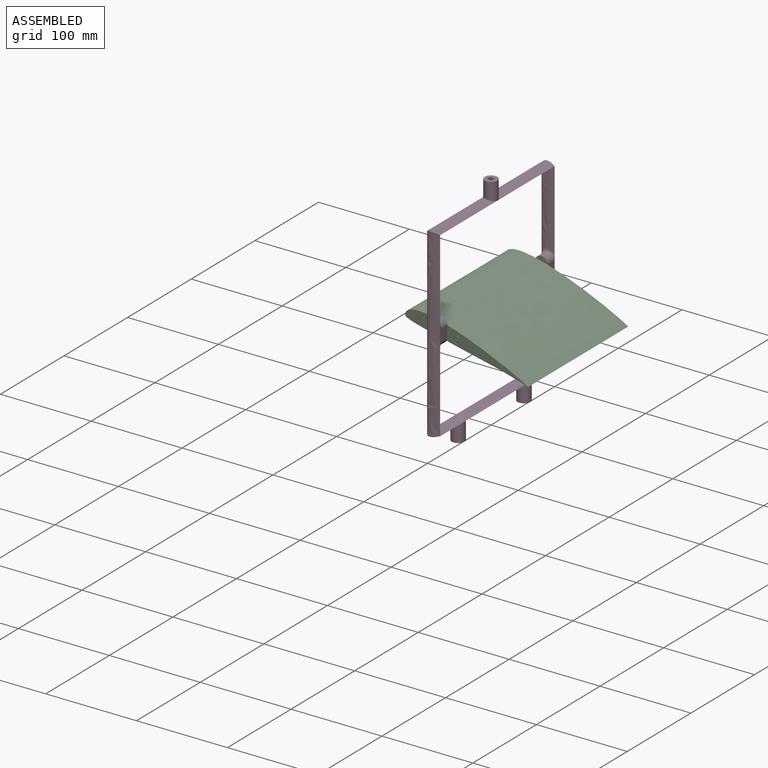
[diagram: assembled view]
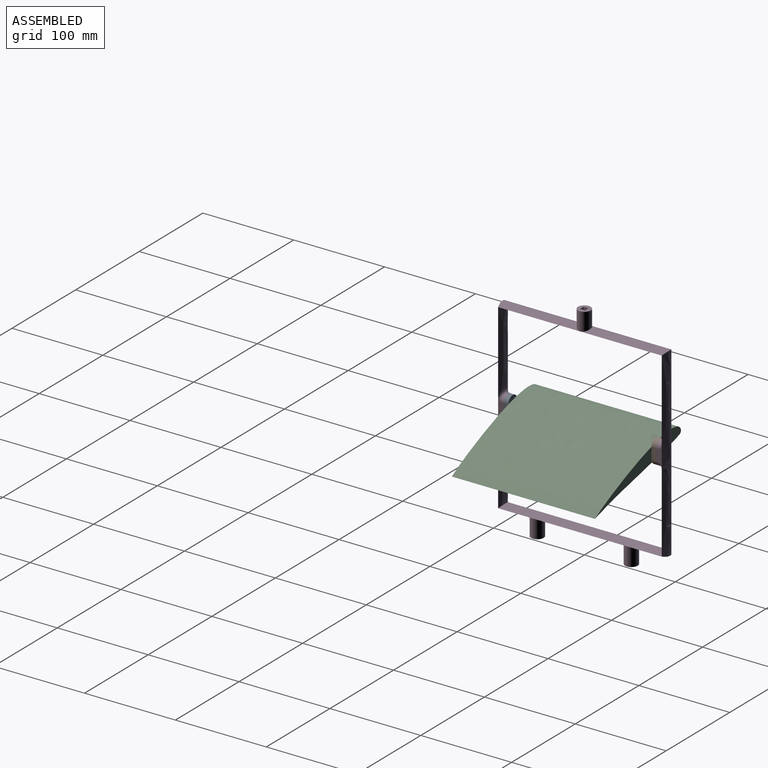
[diagram: assembled view, second angle]
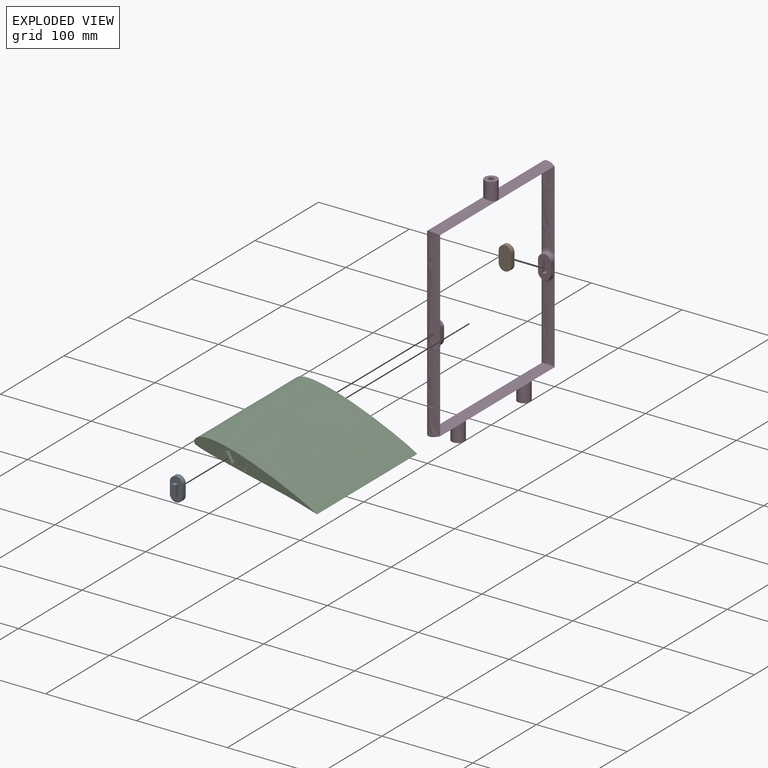
[diagram: exploded view]
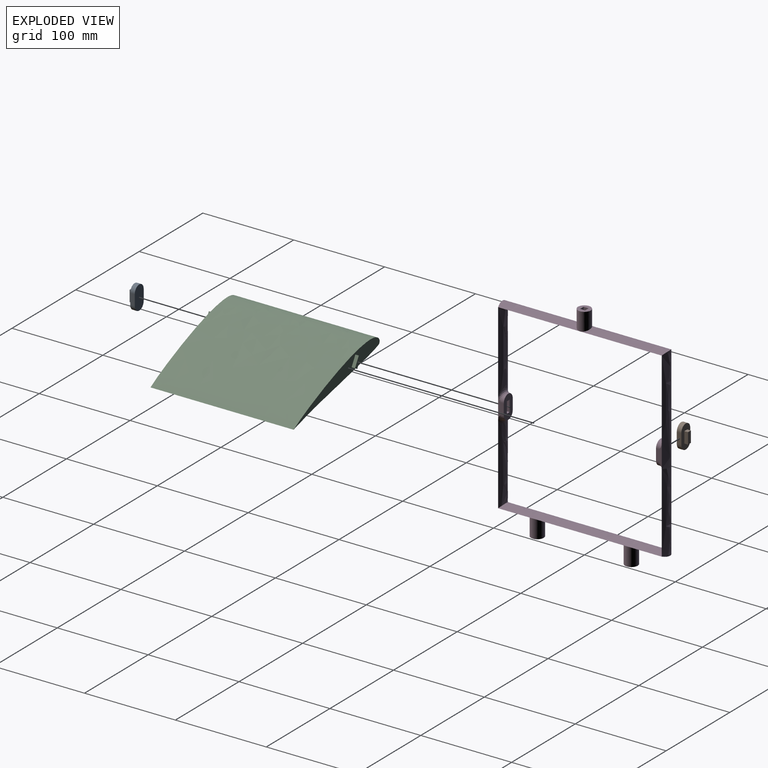
[diagram: exploded view, second angle]
ASSEMBLY  parts=4 mates=3
PART A: 11 faces, bbox 14x9x26 mm
  f0: plane 12.4x4mm, normal (-1,0,0), area 49.6mm2, adj f1,f3,f4,f10
  f1: plane 4.4x4mm, normal (0,0,-1), area 17.6mm2, adj f0,f2,f4,f10
  f2: plane 12.4x4mm, normal (1,0,0), area 49.6mm2, adj f1,f3,f4,f10
  f3: plane 4.4x4mm, normal (0,0,1), area 17.6mm2, adj f0,f2,f4,f10
  f4: plane 12.4x4.4mm, normal (0,-1,0), area 54.6mm2, adj f0,f1,f2,f3
  f5: plane 12x5mm, normal (-1,0,0), area 60mm2, adj f6,f8,f9,f10
  f6: cylinder r=7mm len=14mm, axis (0,-1,0), area 110mm2, adj f5,f7,f9,f10
  f7: plane 12x5mm, normal (1,0,0), area 60mm2, adj f6,f8,f9,f10
  f8: cylinder r=7mm len=14mm, axis (0,-1,0), area 110mm2, adj f5,f7,f9,f10
  f9: plane 26x14mm, normal (0,1,0), area 321.9mm2, adj f5,f6,f7,f8
  f10: plane 26x14mm, normal (0,-1,0), area 267.4mm2, adj f0,f1,f2,f3,f5,f6,f7,f8
PART B: 11 faces, bbox 14x9x26 mm
  f0: plane 12.4x4mm, normal (-1,0,0), area 49.6mm2, adj f1,f3,f4,f10
  f1: plane 4.4x4mm, normal (0,0,-1), area 17.6mm2, adj f0,f2,f4,f10
  f2: plane 12.4x4mm, normal (1,0,0), area 49.6mm2, adj f1,f3,f4,f10
  f3: plane 4.4x4mm, normal (0,0,1), area 17.6mm2, adj f0,f2,f4,f10
  f4: plane 12.4x4.4mm, normal (0,1,0), area 54.6mm2, adj f0,f1,f2,f3
  f5: plane 12x5mm, normal (-1,0,0), area 60mm2, adj f6,f8,f9,f10
  f6: cylinder r=7mm len=14mm, axis (0,1,0), area 110mm2, adj f5,f7,f9,f10
  f7: plane 12x5mm, normal (1,0,0), area 60mm2, adj f6,f8,f9,f10
  f8: cylinder r=7mm len=14mm, axis (0,1,0), area 110mm2, adj f5,f7,f9,f10
  f9: plane 26x14mm, normal (0,-1,0), area 321.9mm2, adj f5,f6,f7,f8
  f10: plane 26x14mm, normal (0,1,0), area 267.4mm2, adj f0,f1,f2,f3,f5,f6,f7,f8
PART C: 24 faces, bbox 140.2x165x28 mm
  f0: cylinder r=4.2mm len=157.5mm, axis (0,1,0), area 750.4mm2, adj f1,f2,f3,f4
  f1: extruded ~157.5x139.02mm, area 21935.3mm2, adj f0,f2,f3,f4
  f2: extruded ~157.5x140mm, area 22736.4mm2, adj f0,f1,f3,f4
  f3: plane 140.25x28.05mm, normal (0,-1,0), area 1383.7mm2, adj f0,f1,f2,f10,f11,f12,f13,f16
  f4: plane 140.25x28.05mm, normal (0,1,0), area 1446.5mm2, adj f0,f1,f2,f5,f6,f7,f8
  f5: plane 3.75x2.83mm, normal (0.71,0,-0.71), area 15mm2, adj f4,f6,f8,f9
  f6: plane 8.49x8.49mm, normal (0.71,0,0.71), area 45mm2, adj f4,f5,f7,f9
  f7: plane 3.75x2.83mm, normal (-0.71,0,0.71), area 15mm2, adj f4,f6,f8,f9
  f8: plane 8.49x8.49mm, normal (-0.71,0,-0.71), area 45mm2, adj f4,f5,f7,f9
  f9: plane 11.31x11.31mm, normal (0,1,0), area 48mm2, adj f5,f6,f7,f8
  f10: plane 3.75x2.83mm, normal (0.71,0,-0.71), area 15mm2, adj f3,f11,f13,f14
  f11: plane 8.49x8.49mm, normal (-0.71,0,-0.71), area 45mm2, adj f3,f10,f12,f14
  f12: plane 3.75x2.83mm, normal (-0.71,0,0.71), area 15mm2, adj f3,f11,f13,f14
  f13: plane 8.49x8.49mm, normal (0.71,0,0.71), area 45mm2, adj f3,f10,f12,f14
  f14: plane 11.31x11.31mm, normal (0,-1,0), area 48mm2, adj f10,f11,f12,f13
  f15: cylinder r=1.26mm len=2.52mm, axis (0,-1,0), area 4mm2, adj f17,f23
  f16: extruded ~10.04x6.62mm, area 17.5mm2, adj f3,f17
  f17: plane 10.45x7.01mm, normal (0,-1,0), area 38.4mm2, adj f15,f16
  f18: plane 2.28x0.5mm, normal (-0.03,0,-1), area 1.1mm2, adj f3,f19,f21,f22
  f19: plane 8.35x0.5mm, normal (1,0,0), area 4.2mm2, adj f3,f18,f20,f22
  f20: plane 2.28x0.5mm, normal (0,0,1), area 1.1mm2, adj f3,f19,f21,f22
  f21: plane 8.27x0.5mm, normal (-1,0,0), area 4.1mm2, adj f3,f18,f20,f22
  f22: plane 8.35x2.28mm, normal (0,-1,0), area 19mm2, adj f18,f19,f20,f21
  f23: plane 2.52x2.52mm, normal (0,-1,0), area 5mm2, adj f15
PART D: 73 faces, bbox 17.2x189.9x240.7 mm
  f0: cylinder r=7mm len=8.89mm, axis (0,-1,0), area 23.1mm2, adj f63,f67,f72
  f1: cylinder r=7mm len=8.89mm, axis (0,-1,0), area 23.1mm2, adj f63,f67,f70
  f2: plane 12.4x4mm, normal (1,0,0), area 49.6mm2, adj f4,f5,f67,f68
  f3: plane 12.4x4mm, normal (-1,0,0), area 49.6mm2, adj f4,f5,f67,f68
  f4: plane 4.4x4mm, normal (0,0,1), area 17.6mm2, adj f2,f3,f67,f68
  f5: plane 4.4x4mm, normal (0,0,-1), area 17.6mm2, adj f2,f3,f67,f68
  f6: cylinder r=1.5mm len=201.15mm, axis (0,0,-1), area 226.8mm2, adj f7,f19,f23,f28,f29,f65,f69,f71
  f7: bspline ~209.22x13.89mm, area 1311.5mm2, adj f6,f28,f31,f72
  f8: cylinder r=7mm len=8.89mm, axis (0,1,0), area 23.1mm2, adj f53,f57,f62
  f9: cylinder r=7mm len=8.89mm, axis (0,1,0), area 23.1mm2, adj f53,f57,f60
  f10: plane 12.4x4mm, normal (1,0,0), area 49.6mm2, adj f12,f13,f57,f58
  f11: plane 12.4x4mm, normal (-1,0,0), area 49.6mm2, adj f12,f13,f57,f58
  f12: plane 4.4x4mm, normal (0,0,-1), area 17.6mm2, adj f10,f11,f57,f58
  f13: plane 4.4x4mm, normal (0,0,1), area 17.6mm2, adj f10,f11,f57,f58
  f14: cylinder r=1.5mm len=201.15mm, axis (0,0,1), area 226.8mm2, adj f15,f16,f19,f23,f27,f55,f59,f61
  f15: bspline ~209.22x13.89mm, area 1311.5mm2, adj f14,f26,f27,f60
  f16: bspline ~209.22x13.89mm, area 1311.5mm2, adj f14,f27,f30,f62
  f17: bspline ~94.61x13.89mm, area 756.1mm2, adj f19,f20,f25,f50
  f18: bspline ~94.61x13.89mm, area 560.6mm2, adj f19,f25,f28,f50
  f19: cylinder r=1.5mm len=181.15mm, axis (0,1,0), area 210.6mm2, adj f6,f14,f17,f18,f20,f21,f25,f26
  f20: bspline ~94.61x13.89mm, area 756.1mm2, adj f17,f19,f26,f43
  f21: bspline ~94.61x13.89mm, area 560.6mm2, adj f19,f26,f27,f43
  f22: bspline ~94.61x13.89mm, area 1325.8mm2, adj f23,f27,f30,f36
  f23: cylinder r=1.5mm len=181.15mm, axis (0,-1,0), area 211.3mm2, adj f6,f14,f22,f24,f30,f31,f36
  f24: bspline ~94.61x13.89mm, area 1325.8mm2, adj f23,f28,f31,f36
  f25: bspline ~94.61x13.89mm, area 1326.6mm2, adj f17,f18,f19,f26,f29
  f26: bspline ~94.61x13.89mm, area 1326.6mm2, adj f15,f19,f20,f21,f25
  f27: bspline ~209.22x13.89mm, area 2965.5mm2, adj f14,f15,f16,f21,f22,f53
  f28: bspline ~209.22x13.89mm, area 2965.5mm2, adj f6,f7,f18,f24,f29,f63
  f29: bspline ~209.22x13.89mm, area 1311.5mm2, adj f6,f25,f28,f70
  f30: bspline ~94.61x13.89mm, area 1326.6mm2, adj f16,f22,f23,f31
  f31: bspline ~94.61x13.89mm, area 1326.6mm2, adj f7,f23,f24,f30
  f32: plane 16x5.5mm, normal (0,-1,0), area 88mm2, adj f33,f35,f37,f38
  f33: plane 16x5.5mm, normal (-1,0,0), area 88mm2, adj f32,f34,f37,f38
  f34: plane 16x5.5mm, normal (0,1,0), area 88mm2, adj f33,f35,f37,f38
  f35: plane 16x5.5mm, normal (1,0,0), area 88mm2, adj f32,f34,f37,f38
  f36: cylinder r=7mm len=20mm, axis (0,0,-1), area 825.1mm2, adj f22,f23,f24,f37
  f37: plane 14x14mm, normal (0,0,1), area 123.7mm2, adj f32,f33,f34,f35,f36
  f38: plane 5.5x5.5mm, normal (0,0,1), area 30.2mm2, adj f32,f33,f34,f35
  f39: plane 16x5.5mm, normal (-1,0,0), area 88mm2, adj f40,f42,f44,f45
  f40: plane 16x5.5mm, normal (0,1,0), area 88mm2, adj f39,f41,f44,f45
  f41: plane 16x5.5mm, normal (1,0,0), area 88mm2, adj f40,f42,f44,f45
  f42: plane 16x5.5mm, normal (0,-1,0), area 88mm2, adj f39,f41,f44,f45
  f43: cylinder r=7mm len=20mm, axis (0,0,1), area 825.1mm2, adj f19,f20,f21,f44
  f44: plane 14x14mm, normal (0,0,-1), area 123.7mm2, adj f39,f40,f41,f42,f43
  f45: plane 5.5x5.5mm, normal (0,0,-1), area 30.2mm2, adj f39,f40,f41,f42
  f46: plane 16x5.5mm, normal (-1,0,0), area 88mm2, adj f47,f49,f51,f52
  f47: plane 16x5.5mm, normal (0,1,0), area 88mm2, adj f46,f48,f51,f52
  f48: plane 16x5.5mm, normal (1,0,0), area 88mm2, adj f47,f49,f51,f52
  f49: plane 16x5.5mm, normal (0,-1,0), area 88mm2, adj f46,f48,f51,f52
  f50: cylinder r=7mm len=20mm, axis (0,0,1), area 825.1mm2, adj f17,f18,f19,f51
  f51: plane 14x14mm, normal (0,0,-1), area 123.7mm2, adj f46,f47,f48,f49,f50
  f52: plane 5.5x5.5mm, normal (0,0,-1), area 30.2mm2, adj f46,f47,f48,f49
  f53: plane 26.59x6.94mm, normal (-1,0,0), area 86.3mm2, adj f8,f9,f27,f57,f60,f62
  f54: cylinder r=7mm len=6.74mm, axis (0,1,0), area 24.9mm2, adj f55,f57,f59,f60
  f55: plane 12x6.25mm, normal (1,0,0), area 75mm2, adj f14,f54,f56,f57
  f56: cylinder r=7mm len=6.74mm, axis (0,1,0), area 24.9mm2, adj f55,f57,f61,f62
  f57: plane 26x14mm, normal (0,-1,0), area 267.4mm2, adj f8,f9,f10,f11,f12,f13,f53,f54
  f58: plane 12.4x4.4mm, normal (0,-1,0), area 54.6mm2, adj f10,f11,f12,f13
  f59: bspline ~3.01x2.1mm, area 1.8mm2, adj f14,f54,f60
  f60: bspline ~16.36x11.63mm, area 105.1mm2, adj f9,f15,f53,f54,f59
  f61: bspline ~3.01x2.1mm, area 1.8mm2, adj f14,f56,f62
  f62: bspline ~16.36x11.63mm, area 105.1mm2, adj f8,f16,f53,f56,f61
  f63: plane 26.59x6.94mm, normal (-1,0,0), area 86.3mm2, adj f0,f1,f28,f67,f70,f72
  f64: cylinder r=7mm len=6.74mm, axis (0,-1,0), area 24.9mm2, adj f65,f67,f71,f72
  f65: plane 12x6.25mm, normal (1,0,0), area 75mm2, adj f6,f64,f66,f67
  f66: cylinder r=7mm len=6.74mm, axis (0,-1,0), area 24.9mm2, adj f65,f67,f69,f70
  f67: plane 26x14mm, normal (0,1,0), area 267.4mm2, adj f0,f1,f2,f3,f4,f5,f63,f64
  f68: plane 12.4x4.4mm, normal (0,1,0), area 54.6mm2, adj f2,f3,f4,f5
  f69: bspline ~3.01x2.1mm, area 1.8mm2, adj f6,f66,f70
  f70: bspline ~16.36x11.63mm, area 105.1mm2, adj f1,f29,f63,f66,f69
  f71: bspline ~3.01x2.1mm, area 1.8mm2, adj f6,f64,f72
  f72: bspline ~16.36x11.63mm, area 105.1mm2, adj f0,f7,f63,f64,f71
PLACE A t=(0,-83.75,0)mm
PLACE B t=(0,3.75,0)mm
PLACE C rot(axis=(0,1,0),15deg) t=(-39.31,78.75,4.74)mm
PLACE D rot(axis=(0,0,1),180deg) t=(0,0,0)mm
MATE fastened B.f4 <-> D.f68  axis (0,1,0) through (0,87.75,0)mm
MATE fastened A.f4 <-> D.f58  axis (0,-1,0) through (0,-87.75,0)mm
MATE revolute C.f4 <-> B.f9  axis (0,-1,0) through (0,78.75,0)mm
